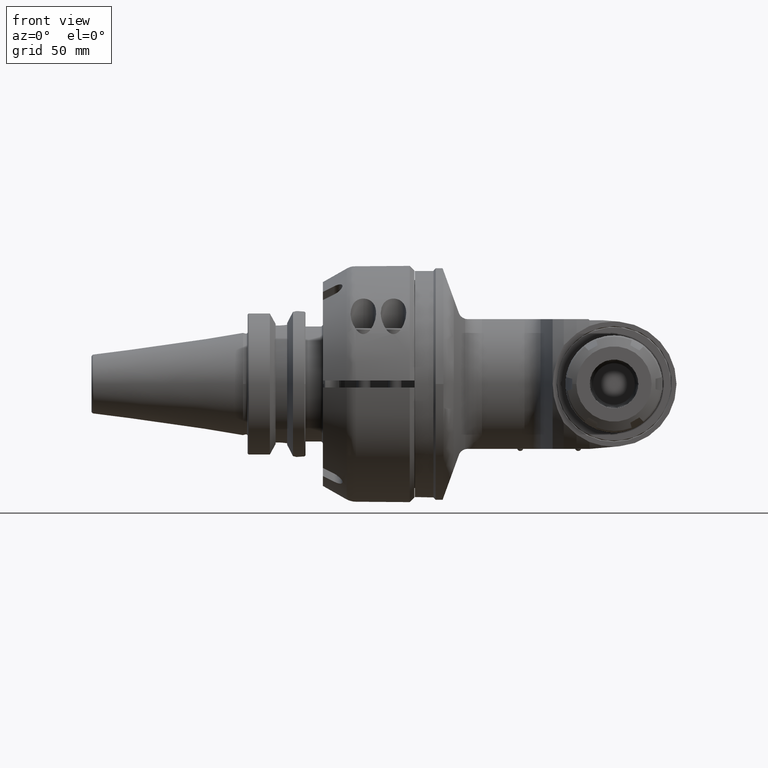
[diagram: clean part render]
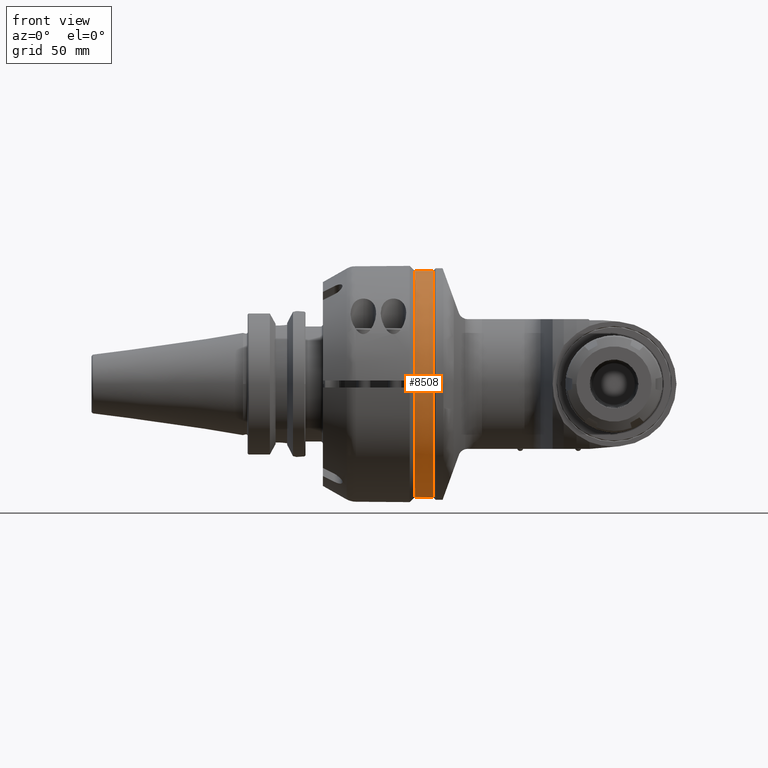
[diagram: same view with one face highlighted and labeled with its STEP entity id]
A machine part, front view. The second image highlights one B-rep face of the part: STEP entity #8508.
In plain terms, the highlighted cylindrical surface (bore or boss wall) has radius 49 mm, axis along (1, 0, 0).
Its self-contained STEP definition (entity closure, byte-faithful):
#614=CYLINDRICAL_SURFACE('',#9154,49.);
#784=CIRCLE('',#9152,49.);
#785=CIRCLE('',#9153,49.);
#786=CIRCLE('',#9155,49.);
#1192=FACE_OUTER_BOUND('',#1725,.T.);
#1725=EDGE_LOOP('',(#5850,#5851,#5852,#5853,#5854));
#2326=LINE('',#13247,#2887);
#2887=VECTOR('',#10264,49.);
#3525=VERTEX_POINT('',#13240);
#3526=VERTEX_POINT('',#13242);
#3527=VERTEX_POINT('',#13246);
#4431=EDGE_CURVE('',#3525,#3526,#784,.T.);
#4432=EDGE_CURVE('',#3526,#3525,#785,.T.);
#4433=EDGE_CURVE('',#3526,#3527,#2326,.T.);
#4434=EDGE_CURVE('',#3527,#3527,#786,.T.);
#5850=ORIENTED_EDGE('',*,*,#4432,.F.);
#5851=ORIENTED_EDGE('',*,*,#4433,.T.);
#5852=ORIENTED_EDGE('',*,*,#4434,.F.);
#5853=ORIENTED_EDGE('',*,*,#4433,.F.);
#5854=ORIENTED_EDGE('',*,*,#4431,.F.);
#8508=ADVANCED_FACE('',(#1192),#614,.T.);
#9152=AXIS2_PLACEMENT_3D('',#13243,#10258,#10259);
#9153=AXIS2_PLACEMENT_3D('',#13244,#10260,#10261);
#9154=AXIS2_PLACEMENT_3D('',#13245,#10262,#10263);
#9155=AXIS2_PLACEMENT_3D('',#13248,#10265,#10266);
#10258=DIRECTION('center_axis',(1.,0.,0.));
#10259=DIRECTION('ref_axis',(0.,-1.,0.));
#10260=DIRECTION('center_axis',(1.,0.,0.));
#10261=DIRECTION('ref_axis',(0.,-1.,0.));
#10262=DIRECTION('center_axis',(1.,0.,0.));
#10263=DIRECTION('ref_axis',(0.,0.0871557427476639,-0.996194698091745));
#10264=DIRECTION('',(-1.,0.,0.));
#10265=DIRECTION('center_axis',(-1.,0.,0.));
#10266=DIRECTION('ref_axis',(0.,-0.0871557427476639,0.996194698091745));
#13240=CARTESIAN_POINT('',(12.,49.,6.00076931582203E-15));
#13242=CARTESIAN_POINT('',(12.,-4.270631394635,48.8135402065));
#13243=CARTESIAN_POINT('Origin',(12.,0.,0.));
#13244=CARTESIAN_POINT('Origin',(12.,0.,0.));
#13245=CARTESIAN_POINT('Origin',(8.1,0.,0.));
#13246=CARTESIAN_POINT('',(4.000000000002,-4.270631394635,48.8135402065));
#13247=CARTESIAN_POINT('',(8.1,-4.27063139463554,48.8135402064955));
#13248=CARTESIAN_POINT('Origin',(4.000000000002,0.,0.));